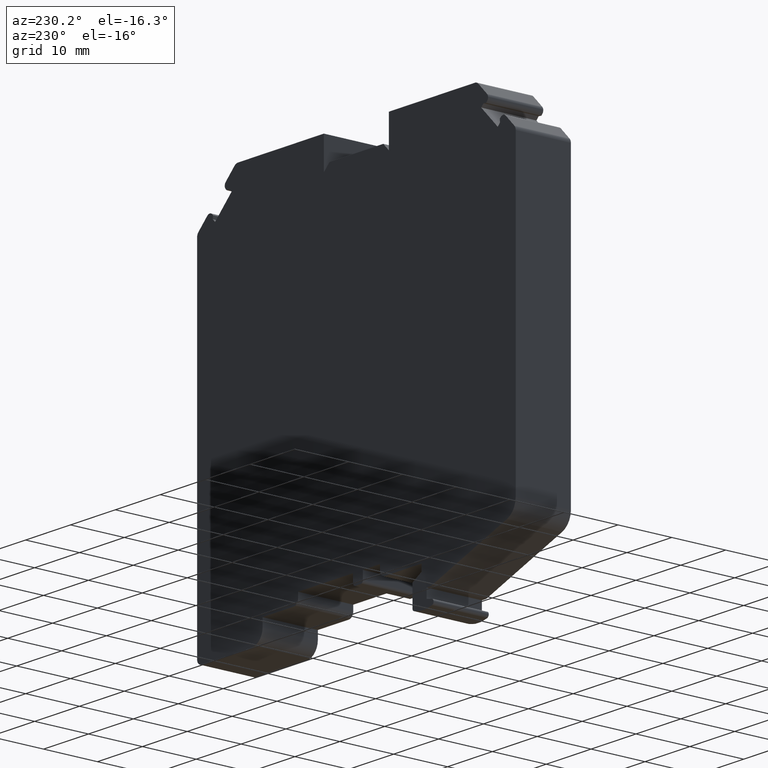
[diagram: clean part render]
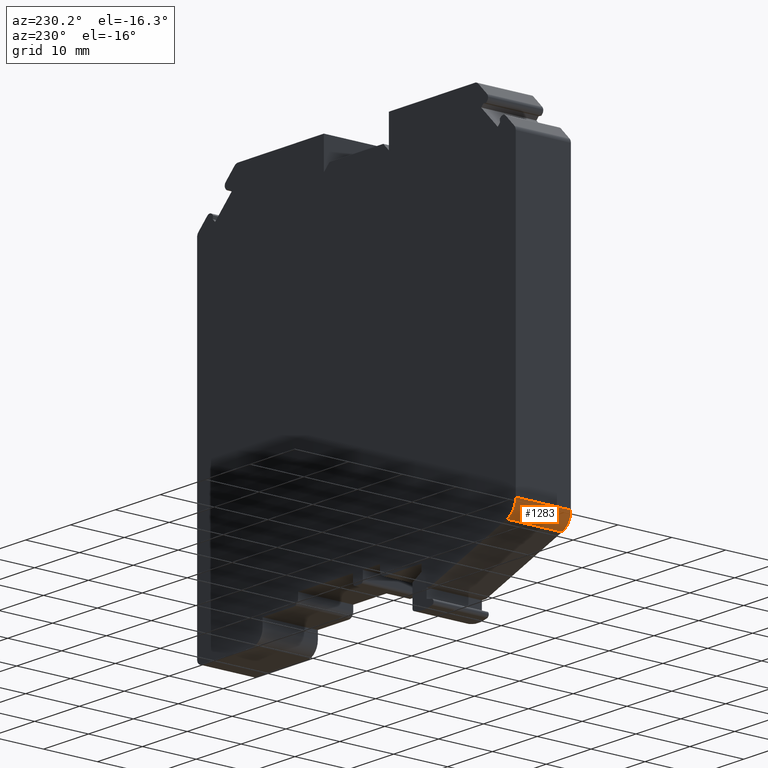
[diagram: same view with one face highlighted and labeled with its STEP entity id]
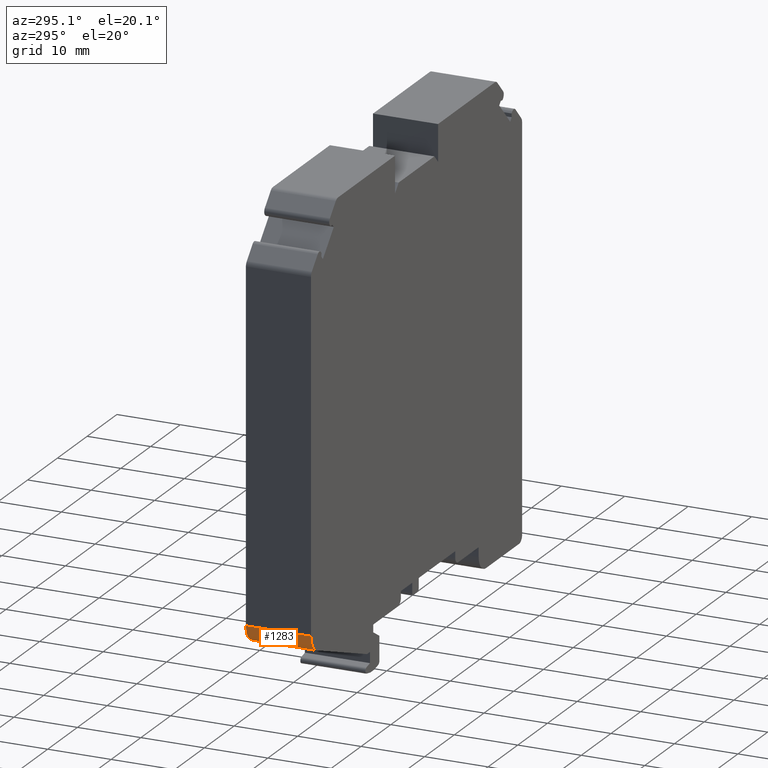
[diagram: same view with one face highlighted and labeled with its STEP entity id]
A machine part, auxiliary view. The second image highlights one B-rep face of the part: STEP entity #1283.
A second angle (auxiliary view) of the same face is appended — the face is thin or edge-on in the first view.
In plain terms, the highlighted cylindrical surface (edge-blend (fillet) strip) has radius 3 mm, axis along (0, -1, 0).
Its self-contained STEP definition (entity closure, byte-faithful):
#34=CIRCLE('',#1376,3.);
#35=CIRCLE('',#1377,3.);
#63=CYLINDRICAL_SURFACE('',#1375,3.);
#206=ORIENTED_EDGE('',*,*,#552,.F.);
#207=ORIENTED_EDGE('',*,*,#551,.F.);
#208=ORIENTED_EDGE('',*,*,#553,.T.);
#209=ORIENTED_EDGE('',*,*,#554,.T.);
#551=EDGE_CURVE('',#708,#707,#852,.T.);
#552=EDGE_CURVE('',#707,#709,#34,.T.);
#553=EDGE_CURVE('',#708,#710,#35,.T.);
#554=EDGE_CURVE('',#710,#709,#853,.T.);
#707=VERTEX_POINT('',#1984);
#708=VERTEX_POINT('',#1986);
#709=VERTEX_POINT('',#1990);
#710=VERTEX_POINT('',#1992);
#852=LINE('',#1987,#1005);
#853=LINE('',#1993,#1006);
#1005=VECTOR('',#1610,1000.);
#1006=VECTOR('',#1617,1000.);
#1106=EDGE_LOOP('',(#206,#207,#208,#209));
#1171=FACE_BOUND('',#1106,.T.);
#1283=ADVANCED_FACE('',(#1171),#63,.T.);
#1375=AXIS2_PLACEMENT_3D('',#1988,#1611,#1612);
#1376=AXIS2_PLACEMENT_3D('',#1989,#1613,#1614);
#1377=AXIS2_PLACEMENT_3D('',#1991,#1615,#1616);
#1610=DIRECTION('',(0.,-1.,0.));
#1611=DIRECTION('',(0.,-1.,0.));
#1612=DIRECTION('',(0.,0.,-1.));
#1613=DIRECTION('',(0.,-1.,0.));
#1614=DIRECTION('',(1.,0.,0.));
#1615=DIRECTION('',(0.,-1.,0.));
#1616=DIRECTION('',(1.,0.,0.));
#1617=DIRECTION('',(0.,-1.,0.));
#1984=CARTESIAN_POINT('',(-35.500718786296,0.,-25.7376055903648));
#1986=CARTESIAN_POINT('',(-35.500718786296,10.25,-25.7376055903648));
#1987=CARTESIAN_POINT('',(-35.500718786296,10.25,-25.7376055903648));
#1988=CARTESIAN_POINT('',(-32.500718786296,10.25,-25.7376055903648));
#1989=CARTESIAN_POINT('',(-32.500718786296,0.,-25.7376055903648));
#1990=CARTESIAN_POINT('',(-33.526779216273,0.,-28.5566834527225));
#1991=CARTESIAN_POINT('',(-32.500718786296,10.25,-25.7376055903648));
#1992=CARTESIAN_POINT('',(-33.526779216273,10.25,-28.5566834527225));
#1993=CARTESIAN_POINT('',(-33.526779216273,10.25,-28.5566834527225));